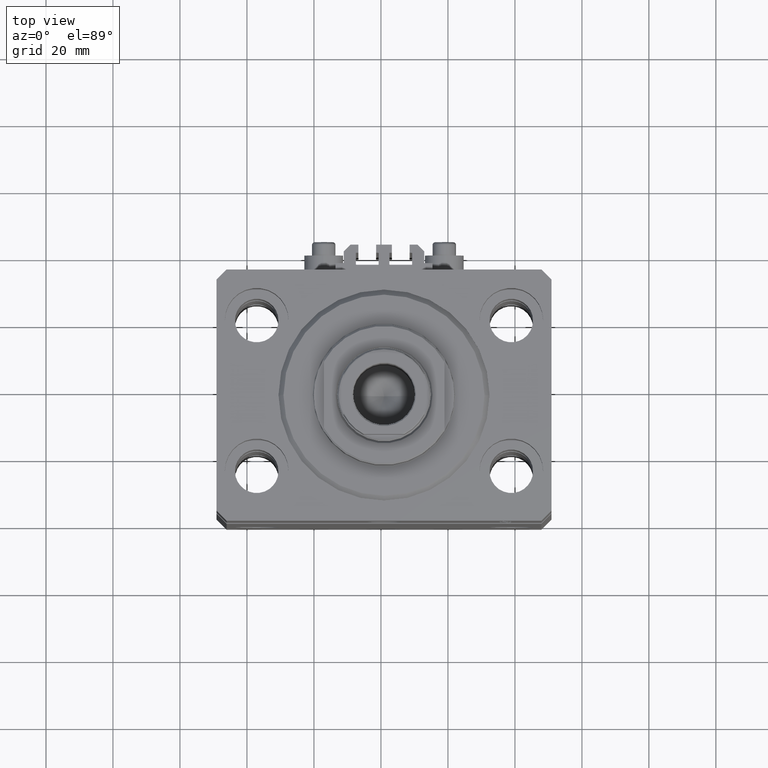
[diagram: clean part render]
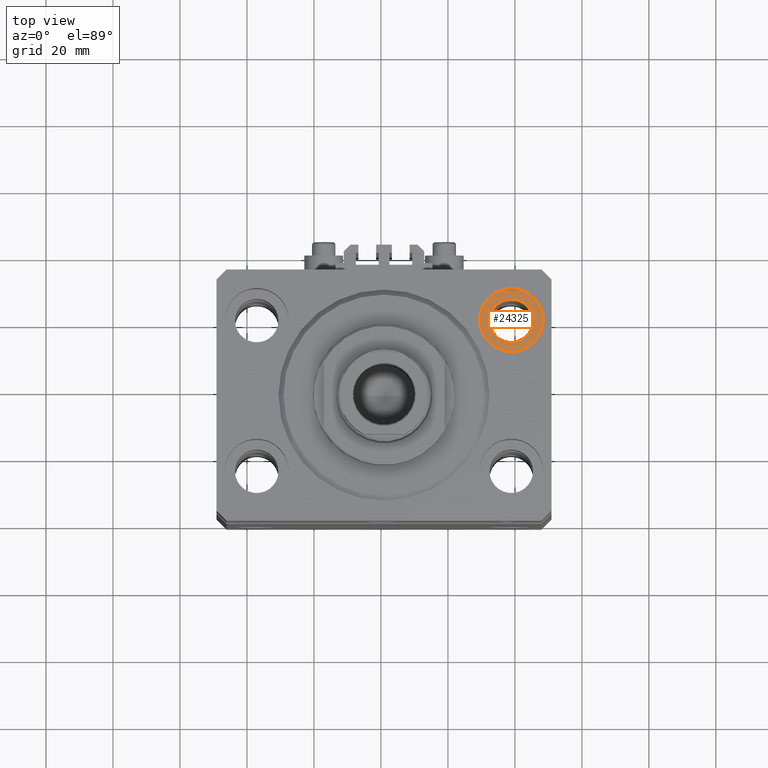
[diagram: same view with one face highlighted and labeled with its STEP entity id]
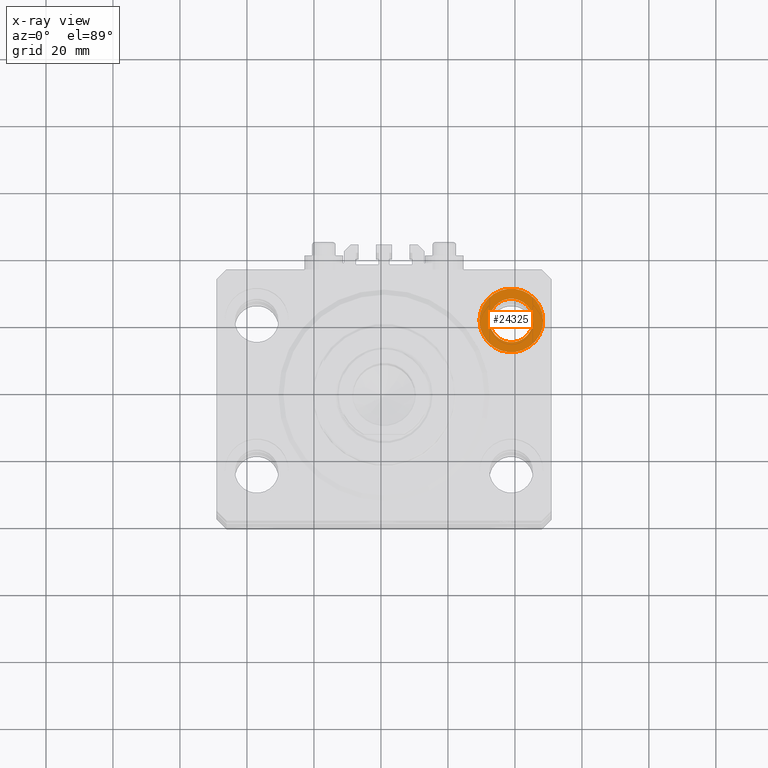
[diagram: x-ray of the same camera — body ghosted, the highlighted face saturated]
A machine part, top view. The second image highlights one B-rep face of the part: STEP entity #24325.
The next image is the same camera in x-ray: the body ghosted, the highlighted face saturated — about 0% of this face is hidden behind the body in this view.
In plain terms, the highlighted planar face has unit normal (0, 0, 1).
Its self-contained STEP definition (entity closure, byte-faithful):
#147 = AXIS2_PLACEMENT_3D ( 'NONE', #682, #30170, #8455 ) ;
#170 = VERTEX_POINT ( 'NONE', #45173 ) ;
#682 = CARTESIAN_POINT ( 'NONE',  ( 38.00000000000000711, 22.50000000000001421, -13.00000000000000000 ) ) ;
#1825 = FACE_OUTER_BOUND ( 'NONE', #6263, .T. ) ;
#1930 = VERTEX_POINT ( 'NONE', #37358 ) ;
#2114 = ORIENTED_EDGE ( 'NONE', *, *, #29112, .F. ) ;
#4567 = AXIS2_PLACEMENT_3D ( 'NONE', #6026, #10620, #31869 ) ;
#5758 = DIRECTION ( 'NONE',  ( 0.000000000000000000, 0.000000000000000000, 1.000000000000000000 ) ) ;
#6026 = CARTESIAN_POINT ( 'NONE',  ( 38.00000000000000711, 22.50000000000001421, -13.00000000000000000 ) ) ;
#6263 = EDGE_LOOP ( 'NONE', ( #42365, #35758 ) ) ;
#6708 = EDGE_CURVE ( 'NONE', #18307, #170, #19343, .T. ) ;
#8455 = DIRECTION ( 'NONE',  ( 1.000000000000000000, 0.000000000000000000, 0.000000000000000000 ) ) ;
#10620 = DIRECTION ( 'NONE',  ( 0.000000000000000000, 0.000000000000000000, 1.000000000000000000 ) ) ;
#12586 = DIRECTION ( 'NONE',  ( 1.000000000000000000, 0.000000000000000000, 0.000000000000000000 ) ) ;
#13367 = VERTEX_POINT ( 'NONE', #29432 ) ;
#13493 = FACE_BOUND ( 'NONE', #25672, .T. ) ;
#16943 = EDGE_CURVE ( 'NONE', #1930, #13367, #35935, .T. ) ;
#17375 = CARTESIAN_POINT ( 'NONE',  ( 38.00000000000000711, 22.50000000000001421, -13.00000000000000000 ) ) ;
#18193 = CIRCLE ( 'NONE', #45470, 9.500000000000001776 ) ;
#18307 = VERTEX_POINT ( 'NONE', #33425 ) ;
#19343 = CIRCLE ( 'NONE', #4567, 6.499999999999999112 ) ;
#21037 = PLANE ( 'NONE',  #46732 ) ;
#21938 = EDGE_CURVE ( 'NONE', #13367, #1930, #18193, .T. ) ;
#24325 = ADVANCED_FACE ( 'NONE', ( #13493, #1825 ), #21037, .T. ) ;
#25672 = EDGE_LOOP ( 'NONE', ( #2114, #41351 ) ) ;
#27298 = DIRECTION ( 'NONE',  ( 0.000000000000000000, 0.000000000000000000, 1.000000000000000000 ) ) ;
#28372 = DIRECTION ( 'NONE',  ( 0.000000000000000000, 0.000000000000000000, 1.000000000000000000 ) ) ;
#29112 = EDGE_CURVE ( 'NONE', #170, #18307, #42963, .T. ) ;
#29432 = CARTESIAN_POINT ( 'NONE',  ( 28.50000000000000355, 22.50000000000001421, -13.00000000000000000 ) ) ;
#30170 = DIRECTION ( 'NONE',  ( 0.000000000000000000, 0.000000000000000000, 1.000000000000000000 ) ) ;
#31560 = DIRECTION ( 'NONE',  ( 1.000000000000000000, 0.000000000000000000, -0.000000000000000000 ) ) ;
#31682 = CARTESIAN_POINT ( 'NONE',  ( 38.00000000000000711, 22.50000000000001421, -13.00000000000000000 ) ) ;
#31869 = DIRECTION ( 'NONE',  ( 1.000000000000000000, 0.000000000000000000, 0.000000000000000000 ) ) ;
#33425 = CARTESIAN_POINT ( 'NONE',  ( 31.50000000000000711, 22.50000000000001421, -13.00000000000000000 ) ) ;
#35758 = ORIENTED_EDGE ( 'NONE', *, *, #21938, .T. ) ;
#35935 = CIRCLE ( 'NONE', #147, 9.500000000000001776 ) ;
#37358 = CARTESIAN_POINT ( 'NONE',  ( 47.50000000000000711, 22.50000000000001421, -13.00000000000000000 ) ) ;
#39137 = CARTESIAN_POINT ( 'NONE',  ( 38.00000000000000711, 22.50000000000001421, -13.00000000000000000 ) ) ;
#41351 = ORIENTED_EDGE ( 'NONE', *, *, #6708, .F. ) ;
#42365 = ORIENTED_EDGE ( 'NONE', *, *, #16943, .T. ) ;
#42963 = CIRCLE ( 'NONE', #46084, 6.499999999999999112 ) ;
#45173 = CARTESIAN_POINT ( 'NONE',  ( 44.50000000000000711, 22.50000000000001421, -13.00000000000000000 ) ) ;
#45470 = AXIS2_PLACEMENT_3D ( 'NONE', #31682, #27298, #46538 ) ;
#46084 = AXIS2_PLACEMENT_3D ( 'NONE', #39137, #5758, #12586 ) ;
#46538 = DIRECTION ( 'NONE',  ( 1.000000000000000000, 0.000000000000000000, 0.000000000000000000 ) ) ;
#46732 = AXIS2_PLACEMENT_3D ( 'NONE', #17375, #28372, #31560 ) ;